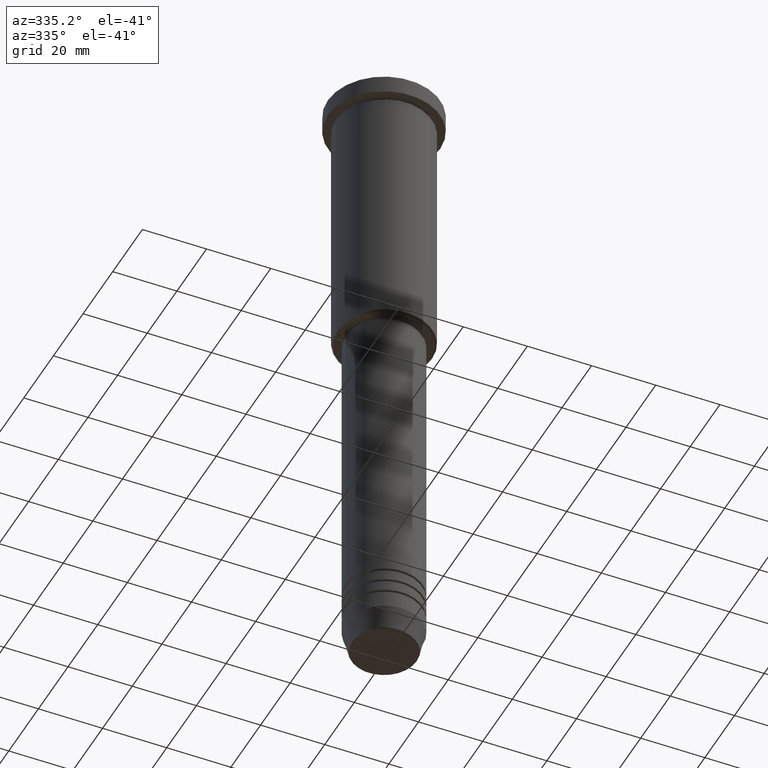
[diagram: clean part render]
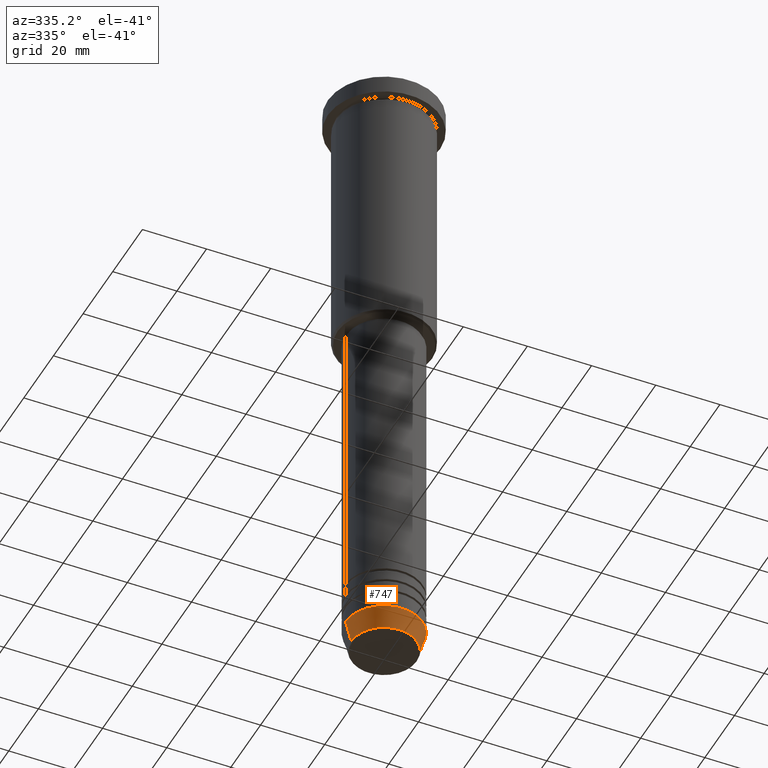
[diagram: same view with one face highlighted and labeled with its STEP entity id]
A machine part, auxiliary view. The second image highlights one B-rep face of the part: STEP entity #747.
In plain terms, the highlighted conical surface has half-angle 15 deg.
Its self-contained STEP definition (entity closure, byte-faithful):
#7 = DIRECTION ( 'NONE',  ( -0.000000000000000000, -0.000000000000000000, 1.000000000000000000 ) ) ;
#16 = DIRECTION ( 'NONE',  ( 1.000000000000000000, 0.000000000000000000, 0.000000000000000000 ) ) ;
#42 = VERTEX_POINT ( 'NONE', #165 ) ;
#101 = VERTEX_POINT ( 'NONE', #975 ) ;
#106 = LINE ( 'NONE', #841, #896 ) ;
#118 = CIRCLE ( 'NONE', #907, 10.22365507213719127 ) ;
#126 = CARTESIAN_POINT ( 'NONE',  ( 0.000000000000000000, 0.000000000000000000, -194.0000000000000000 ) ) ;
#144 = EDGE_CURVE ( 'NONE', #651, #463, #340, .T. ) ;
#165 = CARTESIAN_POINT ( 'NONE',  ( -10.22365507213719127, 1.360806402472382744E-15, -200.6294095225512706 ) ) ;
#168 = AXIS2_PLACEMENT_3D ( 'NONE', #126, #291, #767 ) ;
#181 = EDGE_CURVE ( 'NONE', #42, #651, #118, .T. ) ;
#241 = CIRCLE ( 'NONE', #168, 12.00000000000000000 ) ;
#255 = DIRECTION ( 'NONE',  ( 0.2588190451025213501, 0.000000000000000000, 0.9659258262890680902 ) ) ;
#286 = CARTESIAN_POINT ( 'NONE',  ( 0.000000000000000000, 0.000000000000000000, -194.0000000000000000 ) ) ;
#291 = DIRECTION ( 'NONE',  ( -0.000000000000000000, -0.000000000000000000, 1.000000000000000000 ) ) ;
#306 = ORIENTED_EDGE ( 'NONE', *, *, #1169, .F. ) ;
#334 = CARTESIAN_POINT ( 'NONE',  ( 12.00000000000000000, 0.000000000000000000, -194.0000000000000000 ) ) ;
#340 = LINE ( 'NONE', #334, #456 ) ;
#413 = CARTESIAN_POINT ( 'NONE',  ( 12.00000000000000000, 0.000000000000000000, -194.0000000000000000 ) ) ;
#444 = AXIS2_PLACEMENT_3D ( 'NONE', #286, #737, #16 ) ;
#454 = FACE_OUTER_BOUND ( 'NONE', #924, .T. ) ;
#456 = VECTOR ( 'NONE', #255, 1000.000000000000000 ) ;
#463 = VERTEX_POINT ( 'NONE', #413 ) ;
#477 = ORIENTED_EDGE ( 'NONE', *, *, #781, .F. ) ;
#651 = VERTEX_POINT ( 'NONE', #915 ) ;
#653 = DIRECTION ( 'NONE',  ( 1.000000000000000000, 0.000000000000000000, 0.000000000000000000 ) ) ;
#679 = ORIENTED_EDGE ( 'NONE', *, *, #181, .T. ) ;
#737 = DIRECTION ( 'NONE',  ( -0.000000000000000000, -0.000000000000000000, 1.000000000000000000 ) ) ;
#747 = ADVANCED_FACE ( 'NONE', ( #454 ), #970, .T. ) ;
#767 = DIRECTION ( 'NONE',  ( 1.000000000000000000, 0.000000000000000000, 0.000000000000000000 ) ) ;
#781 = EDGE_CURVE ( 'NONE', #101, #463, #241, .T. ) ;
#813 = CARTESIAN_POINT ( 'NONE',  ( 0.000000000000000000, 0.000000000000000000, -200.6294095225512706 ) ) ;
#841 = CARTESIAN_POINT ( 'NONE',  ( -12.00000000000000000, 1.469576158976823947E-15, -194.0000000000000000 ) ) ;
#896 = VECTOR ( 'NONE', #1116, 1000.000000000000000 ) ;
#907 = AXIS2_PLACEMENT_3D ( 'NONE', #813, #7, #653 ) ;
#915 = CARTESIAN_POINT ( 'NONE',  ( 10.22365507213719127, 0.000000000000000000, -200.6294095225512706 ) ) ;
#924 = EDGE_LOOP ( 'NONE', ( #306, #679, #967, #477 ) ) ;
#967 = ORIENTED_EDGE ( 'NONE', *, *, #144, .T. ) ;
#970 = CONICAL_SURFACE ( 'NONE', #444, 12.00000000000000000, 0.2617993877991500740 ) ;
#975 = CARTESIAN_POINT ( 'NONE',  ( -12.00000000000000000, 1.469576158976823947E-15, -194.0000000000000000 ) ) ;
#1116 = DIRECTION ( 'NONE',  ( -0.2588190451025213501, 3.169619151431772337E-17, 0.9659258262890680902 ) ) ;
#1169 = EDGE_CURVE ( 'NONE', #42, #101, #106, .T. ) ;